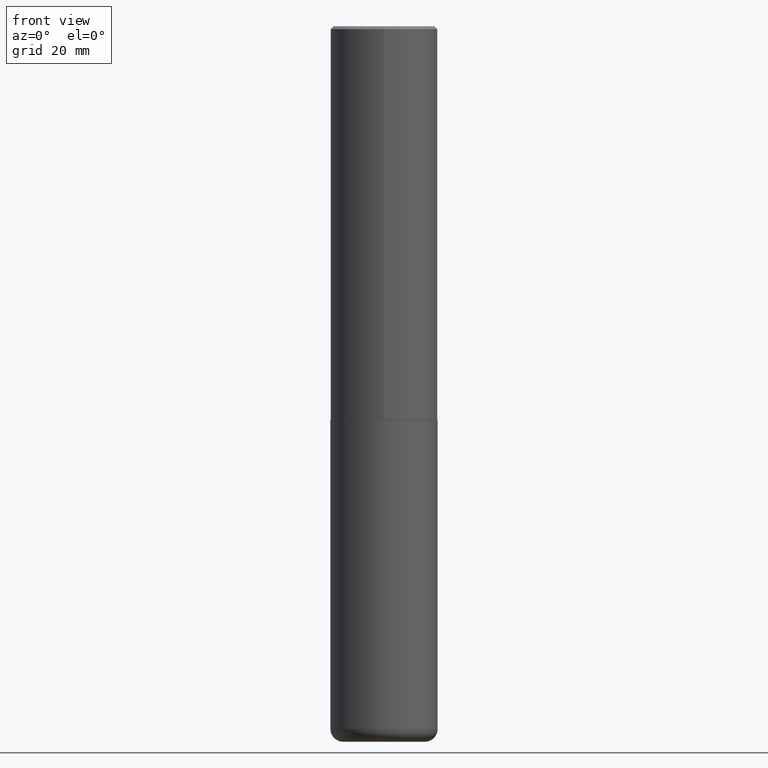
[diagram: clean part render]
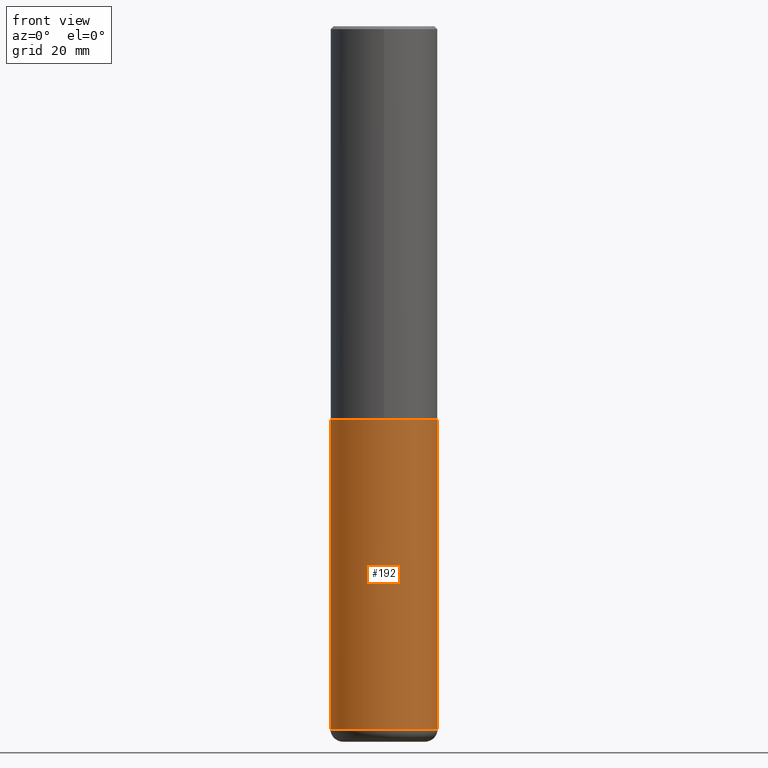
[diagram: same view with one face highlighted and labeled with its STEP entity id]
A machine part, front view. The second image highlights one B-rep face of the part: STEP entity #192.
In plain terms, the highlighted cylindrical surface (partial cylindrical patch) has radius 9.525 mm, axis along (-0, 0, 1).
Its self-contained STEP definition (entity closure, byte-faithful):
#4 = DIRECTION ( 'NONE',  ( -2.445468806185136877E-29, 3.491481338843145188E-15, 1.000000000000000000 ) ) ;
#11 = LINE ( 'NONE', #202, #33 ) ;
#14 = EDGE_CURVE ( 'NONE', #337, #113, #383, .T. ) ;
#33 = VECTOR ( 'NONE', #4, 39.37007874015748143 ) ;
#40 = DIRECTION ( 'NONE',  ( 1.000000000000000000, -6.982962677686269077E-15, 0.000000000000000000 ) ) ;
#49 = AXIS2_PLACEMENT_3D ( 'NONE', #63, #233, #196 ) ;
#56 = CIRCLE ( 'NONE', #49, 0.3750000000000000555 ) ;
#63 = CARTESIAN_POINT ( 'NONE',  ( 6.725039217009124520E-29, -9.601573681818649859E-15, -2.750000000000000000 ) ) ;
#71 = DIRECTION ( 'NONE',  ( -2.445468806185136597E-29, 3.491481338843145583E-15, 1.000000000000000000 ) ) ;
#75 = FACE_OUTER_BOUND ( 'NONE', #186, .T. ) ;
#91 = VECTOR ( 'NONE', #230, 39.37007874015748143 ) ;
#98 = CARTESIAN_POINT ( 'NONE',  ( -0.3749999999999999445, 2.664535259100375303E-15, -1.844600658845589318E-29 ) ) ;
#111 = DIRECTION ( 'NONE',  ( -2.445468806185136597E-29, 3.491481338843145583E-15, 1.000000000000000000 ) ) ;
#113 = VERTEX_POINT ( 'NONE', #204 ) ;
#114 = EDGE_CURVE ( 'NONE', #310, #218, #11, .T. ) ;
#119 = ORIENTED_EDGE ( 'NONE', *, *, #266, .F. ) ;
#151 = EDGE_CURVE ( 'NONE', #337, #310, #161, .T. ) ;
#161 = CIRCLE ( 'NONE', #275, 0.3749999999999999445 ) ;
#164 = ORIENTED_EDGE ( 'NONE', *, *, #114, .T. ) ;
#186 = EDGE_LOOP ( 'NONE', ( #343, #195, #164, #119 ) ) ;
#192 = ADVANCED_FACE ( 'NONE', ( #75 ), #326, .T. ) ;
#195 = ORIENTED_EDGE ( 'NONE', *, *, #151, .T. ) ;
#196 = DIRECTION ( 'NONE',  ( 1.000000000000000000, -6.982962677686266711E-15, 0.000000000000000000 ) ) ;
#202 = CARTESIAN_POINT ( 'NONE',  ( 0.3749999999999999445, -2.618611004132349622E-15, 1.828566290923475642E-29 ) ) ;
#204 = CARTESIAN_POINT ( 'NONE',  ( -0.3750000000000000555, -1.070783826866887333E-14, -2.750000000000000000 ) ) ;
#218 = VERTEX_POINT ( 'NONE', #363 ) ;
#221 = CARTESIAN_POINT ( 'NONE',  ( 0.3749999999999999445, -1.976178437785219664E-14, -4.910000000000000142 ) ) ;
#230 = DIRECTION ( 'NONE',  ( -2.445468806185136877E-29, 3.491481338843145188E-15, 1.000000000000000000 ) ) ;
#233 = DIRECTION ( 'NONE',  ( -2.445468806185136597E-29, 3.491481338843145583E-15, 1.000000000000000000 ) ) ;
#234 = CARTESIAN_POINT ( 'NONE',  ( 1.200725183836902132E-28, -1.714317337371984662E-14, -4.910000000000000142 ) ) ;
#266 = EDGE_CURVE ( 'NONE', #113, #218, #56, .T. ) ;
#275 = AXIS2_PLACEMENT_3D ( 'NONE', #234, #71, #40 ) ;
#299 = DIRECTION ( 'NONE',  ( 1.000000000000000000, -6.982962677686266711E-15, 4.876176775795935793E-29 ) ) ;
#310 = VERTEX_POINT ( 'NONE', #221 ) ;
#319 = CARTESIAN_POINT ( 'NONE',  ( -0.3749999999999999445, -1.447863811461947092E-14, -4.910000000000000142 ) ) ;
#326 = CYLINDRICAL_SURFACE ( 'NONE', #386, 0.3749999999999999445 ) ;
#337 = VERTEX_POINT ( 'NONE', #319 ) ;
#343 = ORIENTED_EDGE ( 'NONE', *, *, #14, .F. ) ;
#363 = CARTESIAN_POINT ( 'NONE',  ( 0.3750000000000000555, -1.222018468595100145E-14, -2.750000000000000000 ) ) ;
#383 = LINE ( 'NONE', #98, #91 ) ;
#386 = AXIS2_PLACEMENT_3D ( 'NONE', #393, #111, #299 ) ;
#393 = CARTESIAN_POINT ( 'NONE',  ( 0.000000000000000000, 0.000000000000000000, 0.000000000000000000 ) ) ;